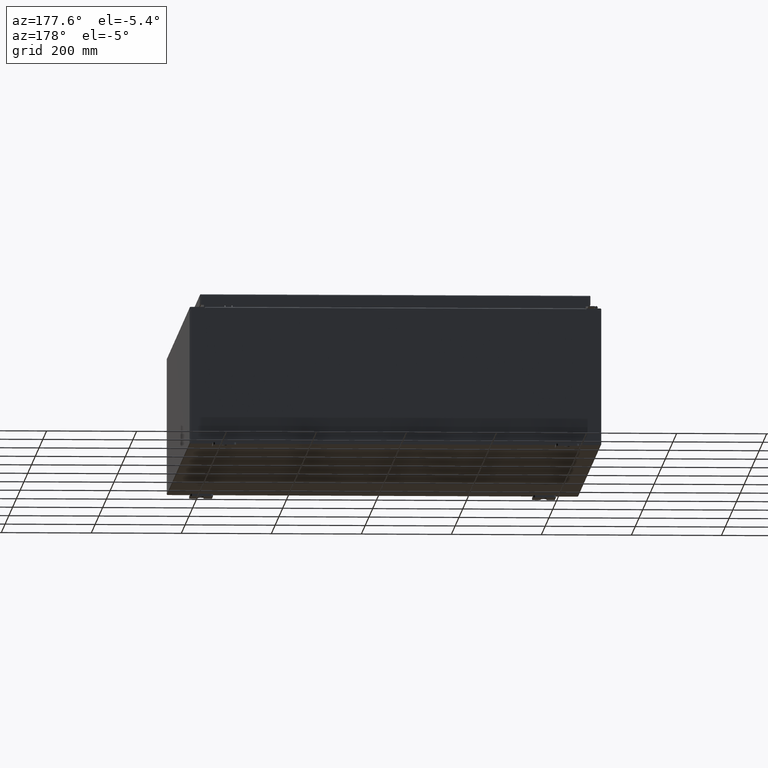
[diagram: clean part render]
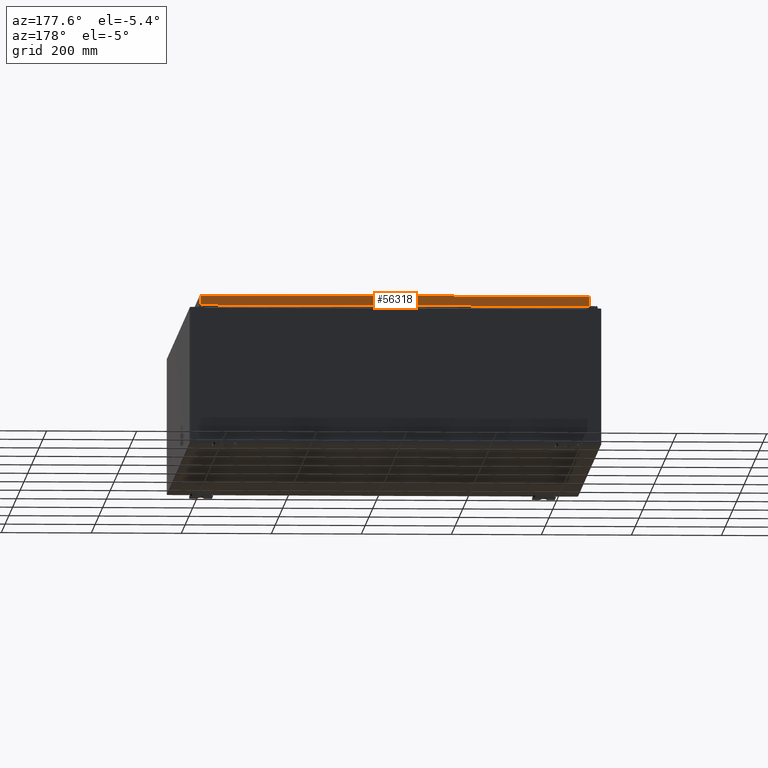
[diagram: same view with one face highlighted and labeled with its STEP entity id]
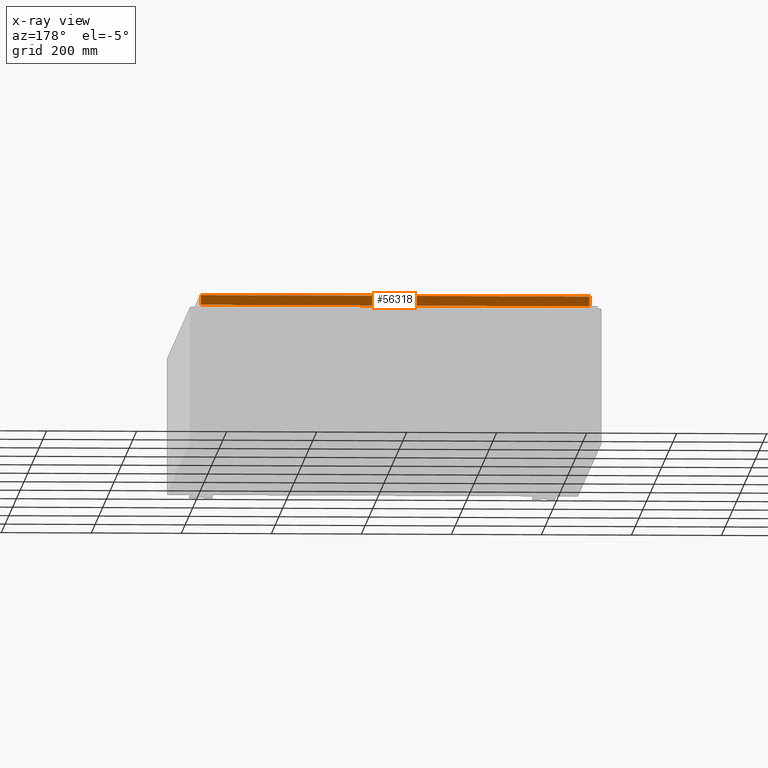
[diagram: x-ray of the same camera — body ghosted, the highlighted face saturated]
A machine part, auxiliary view. The second image highlights one B-rep face of the part: STEP entity #56318.
The next image is the same camera in x-ray: the body ghosted, the highlighted face saturated — about 0% of this face is hidden behind the body in this view.
In plain terms, the highlighted planar face has unit normal (0, -1, -0).
Its self-contained STEP definition (entity closure, byte-faithful):
#1080 = VECTOR ( 'NONE', #26304, 39.37007874015748100 ) ;
#13277 = EDGE_CURVE ( 'NONE', #83556, #107341, #111388, .T. ) ;
#20879 = VERTEX_POINT ( 'NONE', #85378 ) ;
#26242 = CARTESIAN_POINT ( 'NONE',  ( 16.98915786437627100, 23.09400000000000800, -0.9376999999999997600 ) ) ;
#26304 = DIRECTION ( 'NONE',  ( -0.0000000000000000000, 5.064839849203707700E-015, -1.000000000000000000 ) ) ;
#27148 = CARTESIAN_POINT ( 'NONE',  ( -17.07799999999999600, 23.09400000000000800, -0.9377000000000040900 ) ) ;
#27246 = VECTOR ( 'NONE', #100996, 39.37007874015748100 ) ;
#30696 = ORIENTED_EDGE ( 'NONE', *, *, #109709, .T. ) ;
#30754 = CARTESIAN_POINT ( 'NONE',  ( -16.98915786437626400, 23.09400000000000800, -0.9377000000000040900 ) ) ;
#33036 = LINE ( 'NONE', #74379, #88222 ) ;
#40313 = LINE ( 'NONE', #27148, #58125 ) ;
#46530 = CARTESIAN_POINT ( 'NONE',  ( -1.450060434394706800E-029, 23.09400000000000500, 1.172282251335220500E-013 ) ) ;
#56318 = ADVANCED_FACE ( 'NONE', ( #123704 ), #119455, .F. ) ;
#58125 = VECTOR ( 'NONE', #120090, 39.37007874015748100 ) ;
#67830 = DIRECTION ( 'NONE',  ( 0.0000000000000000000, 5.064839849203707700E-015, -1.000000000000000000 ) ) ;
#68711 = AXIS2_PLACEMENT_3D ( 'NONE', #46530, #129905, #67830 ) ;
#74379 = CARTESIAN_POINT ( 'NONE',  ( 16.98915786437627100, 23.09400000000000500, 1.172282251335220500E-013 ) ) ;
#74571 = VERTEX_POINT ( 'NONE', #26242 ) ;
#81825 = ORIENTED_EDGE ( 'NONE', *, *, #92109, .F. ) ;
#82484 = LINE ( 'NONE', #90565, #27246 ) ;
#83556 = VERTEX_POINT ( 'NONE', #133293 ) ;
#85378 = CARTESIAN_POINT ( 'NONE',  ( 16.98915786437627100, 23.09400000000000500, -0.08769999999999550400 ) ) ;
#88222 = VECTOR ( 'NONE', #115174, 39.37007874015748100 ) ;
#90565 = CARTESIAN_POINT ( 'NONE',  ( -17.07799999999999600, 23.09400000000000500, -0.08769999999999550400 ) ) ;
#90704 = CARTESIAN_POINT ( 'NONE',  ( -16.98915786437626400, 23.09400000000000500, -0.07469999999999962800 ) ) ;
#92109 = EDGE_CURVE ( 'NONE', #20879, #83556, #82484, .T. ) ;
#100996 = DIRECTION ( 'NONE',  ( -1.000000000000000000, -6.278948793603129100E-031, -3.245122892416731400E-045 ) ) ;
#101647 = EDGE_CURVE ( 'NONE', #107341, #74571, #40313, .T. ) ;
#103801 = ORIENTED_EDGE ( 'NONE', *, *, #101647, .F. ) ;
#107341 = VERTEX_POINT ( 'NONE', #30754 ) ;
#109709 = EDGE_CURVE ( 'NONE', #20879, #74571, #33036, .T. ) ;
#111388 = LINE ( 'NONE', #90704, #1080 ) ;
#115174 = DIRECTION ( 'NONE',  ( 0.0000000000000000000, 5.064839849203707700E-015, -1.000000000000000000 ) ) ;
#115613 = EDGE_LOOP ( 'NONE', ( #81825, #30696, #103801, #129215 ) ) ;
#119455 = PLANE ( 'NONE',  #68711 ) ;
#120090 = DIRECTION ( 'NONE',  ( 1.000000000000000000, 8.758115402030108600E-047, 1.239713195391617600E-016 ) ) ;
#123704 = FACE_OUTER_BOUND ( 'NONE', #115613, .T. ) ;
#129215 = ORIENTED_EDGE ( 'NONE', *, *, #13277, .F. ) ;
#129905 = DIRECTION ( 'NONE',  ( 6.278948793603128200E-031, -1.000000000000000000, -5.064839849203707700E-015 ) ) ;
#133293 = CARTESIAN_POINT ( 'NONE',  ( -16.98915786437626400, 23.09400000000000500, -0.08769999999999550400 ) ) ;